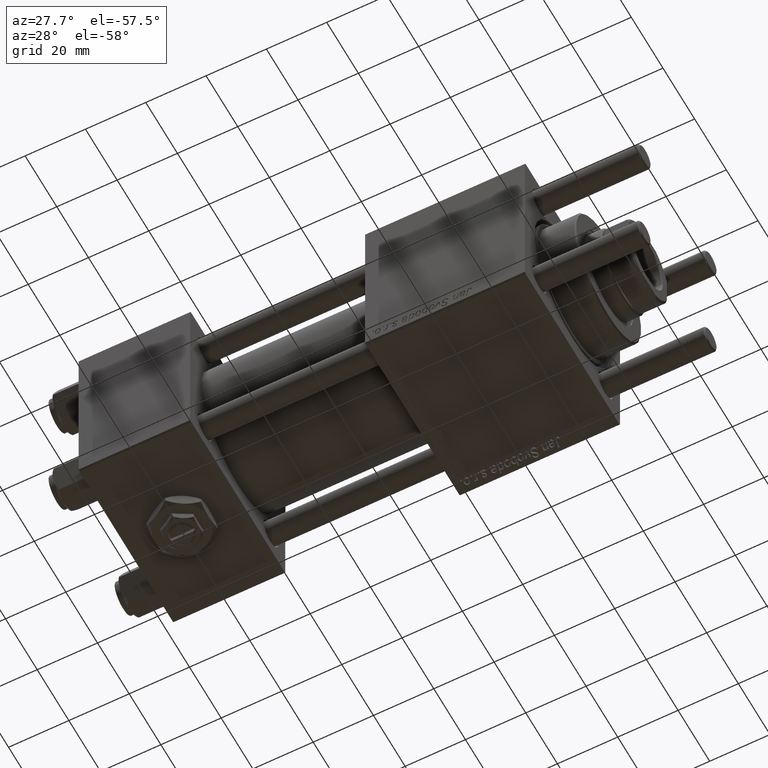
[diagram: clean part render]
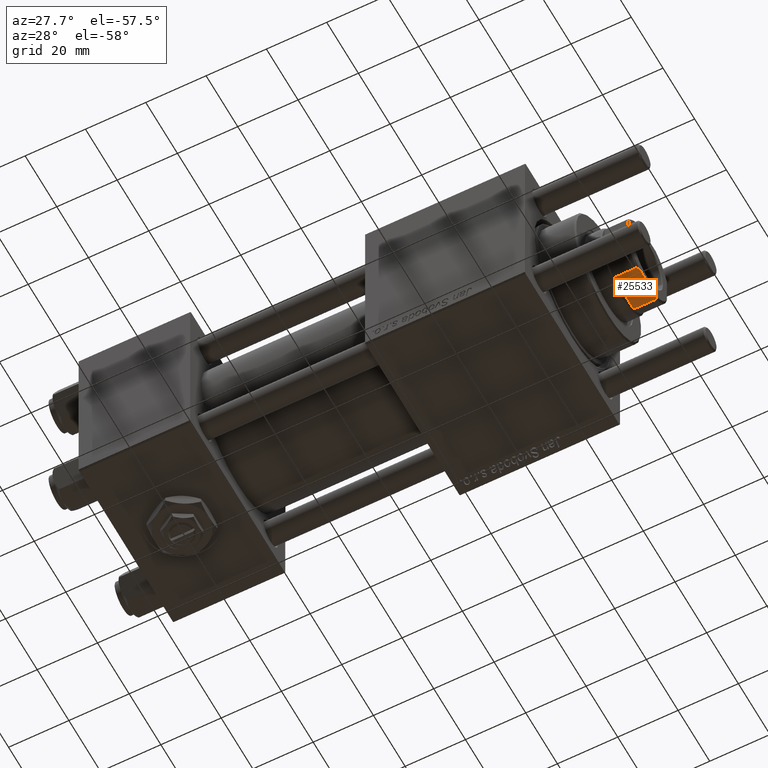
[diagram: same view with one face highlighted and labeled with its STEP entity id]
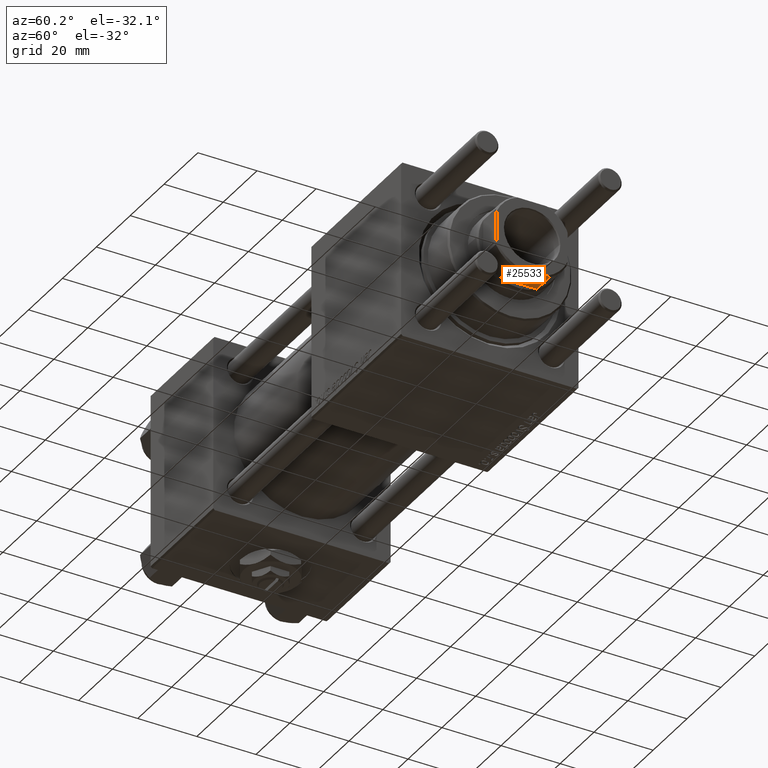
[diagram: same view with one face highlighted and labeled with its STEP entity id]
A machine part, auxiliary view. The second image highlights one B-rep face of the part: STEP entity #25533.
A second angle (auxiliary view) of the same face is appended — the face is thin or edge-on in the first view.
In plain terms, the highlighted planar face has unit normal (0, -0, 1).
Its self-contained STEP definition (entity closure, byte-faithful):
#1242 = VERTEX_POINT ( 'NONE', #2993 ) ;
#1659 = CARTESIAN_POINT ( 'NONE',  ( 6.184658438426495763, 11.99999999999999822, -0.001000000000001000089 ) ) ;
#2092 = LINE ( 'NONE', #25474, #48854 ) ;
#2786 = CARTESIAN_POINT ( 'NONE',  ( 6.184658438426495763, 11.99999999999999822, 135.5000000000000284 ) ) ;
#2993 = CARTESIAN_POINT ( 'NONE',  ( 6.184658438426494875, 11.99999999999999645, 128.0000000000000853 ) ) ;
#3611 = EDGE_CURVE ( 'NONE', #17382, #5777, #38656, .T. ) ;
#4659 = CARTESIAN_POINT ( 'NONE',  ( -5.400255697127783527, 11.99999999999999645, 135.8460555011047006 ) ) ;
#5422 = EDGE_LOOP ( 'NONE', ( #30811, #15791, #21059, #21458, #47185, #47449 ) ) ;
#5777 = VERTEX_POINT ( 'NONE', #37774 ) ;
#8708 = VECTOR ( 'NONE', #33043, 1000.000000000000000 ) ;
#9840 = VECTOR ( 'NONE', #24462, 1000.000000000000000 ) ;
#10737 = EDGE_CURVE ( 'NONE', #1242, #17382, #2092, .T. ) ;
#10826 = CARTESIAN_POINT ( 'NONE',  ( 6.184658438426495763, 11.99999999999999822, 135.5000000000000284 ) ) ;
#12173 = EDGE_CURVE ( 'NONE', #13105, #25792, #32455, .T. ) ;
#13105 = VERTEX_POINT ( 'NONE', #15070 ) ;
#13535 = CARTESIAN_POINT ( 'NONE',  ( -5.794808544282238572, 11.99999999999999645, 135.6785991435214100 ) ) ;
#14031 = DIRECTION ( 'NONE',  ( -1.000000000000000000, -0.000000000000000000, -0.000000000000000000 ) ) ;
#15070 = CARTESIAN_POINT ( 'NONE',  ( 5.000000000000042633, 11.99999999999999645, 136.0000000000000000 ) ) ;
#15791 = ORIENTED_EDGE ( 'NONE', *, *, #12173, .T. ) ;
#16169 = CARTESIAN_POINT ( 'NONE',  ( -4.999999999999987566, 11.99999999999999645, 136.0000000000000000 ) ) ;
#16424 = CARTESIAN_POINT ( 'NONE',  ( -6.184658438426496652, 11.99999999999999645, -0.001000000000001000089 ) ) ;
#16432 = CARTESIAN_POINT ( 'NONE',  ( 5.000000000000042633, 11.99999999999999645, 136.0000000000000000 ) ) ;
#16458 = PLANE ( 'NONE',  #45655 ) ;
#17005 = B_SPLINE_CURVE_WITH_KNOTS ( 'NONE', 3,
 ( #54123, #13535, #4659, #16169 ),
 .UNSPECIFIED., .F., .F.,
 ( 4, 4 ),
 ( 0.000000000000000000, 0.001285852097146142998 ),
 .UNSPECIFIED. ) ;
#17382 = VERTEX_POINT ( 'NONE', #42011 ) ;
#20017 = CARTESIAN_POINT ( 'NONE',  ( 5.400255697127817278, 11.99999999999999645, 135.8460555011047006 ) ) ;
#20148 = DIRECTION ( 'NONE',  ( -1.000000000000000000, -0.000000000000000000, -0.000000000000000000 ) ) ;
#21059 = ORIENTED_EDGE ( 'NONE', *, *, #57204, .F. ) ;
#21458 = ORIENTED_EDGE ( 'NONE', *, *, #10737, .T. ) ;
#24462 = DIRECTION ( 'NONE',  ( -0.000000000000000000, -0.000000000000000000, 1.000000000000000000 ) ) ;
#25303 = EDGE_CURVE ( 'NONE', #5777, #41059, #17005, .T. ) ;
#25474 = CARTESIAN_POINT ( 'NONE',  ( -12.00000000000000000, 11.99999999999999645, 128.0000000000000000 ) ) ;
#25533 = ADVANCED_FACE ( 'NONE', ( #40151 ), #16458, .F. ) ;
#25792 = VERTEX_POINT ( 'NONE', #2786 ) ;
#30067 = CARTESIAN_POINT ( 'NONE',  ( 5.794808544282261664, 11.99999999999999645, 135.6785991435214385 ) ) ;
#30811 = ORIENTED_EDGE ( 'NONE', *, *, #51124, .F. ) ;
#32098 = LINE ( 'NONE', #36539, #56718 ) ;
#32165 = LINE ( 'NONE', #1659, #8708 ) ;
#32455 = B_SPLINE_CURVE_WITH_KNOTS ( 'NONE', 3,
 ( #16432, #20017, #30067, #10826 ),
 .UNSPECIFIED., .F., .F.,
 ( 4, 4 ),
 ( 8.673617379884035472E-19, 0.001285852097146082717 ),
 .UNSPECIFIED. ) ;
#33043 = DIRECTION ( 'NONE',  ( -0.000000000000000000, -0.000000000000000000, 1.000000000000000000 ) ) ;
#36539 = CARTESIAN_POINT ( 'NONE',  ( -12.00000000000000000, 11.99999999999999645, 136.0000000000000000 ) ) ;
#36558 = CARTESIAN_POINT ( 'NONE',  ( -4.999999999999987566, 11.99999999999999645, 136.0000000000000000 ) ) ;
#37774 = CARTESIAN_POINT ( 'NONE',  ( -6.184658438426496652, 11.99999999999999645, 135.5000000000000000 ) ) ;
#38656 = LINE ( 'NONE', #16424, #9840 ) ;
#39261 = DIRECTION ( 'NONE',  ( 0.000000000000000000, -0.000000000000000000, -1.000000000000000000 ) ) ;
#40151 = FACE_OUTER_BOUND ( 'NONE', #5422, .T. ) ;
#41059 = VERTEX_POINT ( 'NONE', #36558 ) ;
#42011 = CARTESIAN_POINT ( 'NONE',  ( -6.184658438426494875, 11.99999999999999645, 128.0000000000000853 ) ) ;
#45655 = AXIS2_PLACEMENT_3D ( 'NONE', #57359, #58236, #39261 ) ;
#47185 = ORIENTED_EDGE ( 'NONE', *, *, #3611, .T. ) ;
#47449 = ORIENTED_EDGE ( 'NONE', *, *, #25303, .T. ) ;
#48854 = VECTOR ( 'NONE', #20148, 1000.000000000000000 ) ;
#51124 = EDGE_CURVE ( 'NONE', #13105, #41059, #32098, .T. ) ;
#54123 = CARTESIAN_POINT ( 'NONE',  ( -6.184658438426496652, 11.99999999999999645, 135.5000000000000000 ) ) ;
#56718 = VECTOR ( 'NONE', #14031, 1000.000000000000000 ) ;
#57204 = EDGE_CURVE ( 'NONE', #1242, #25792, #32165, .T. ) ;
#57359 = CARTESIAN_POINT ( 'NONE',  ( -12.00000000000000000, 11.99999999999999645, 136.0000000000000000 ) ) ;
#58236 = DIRECTION ( 'NONE',  ( 0.000000000000000000, -1.000000000000000000, 0.000000000000000000 ) ) ;